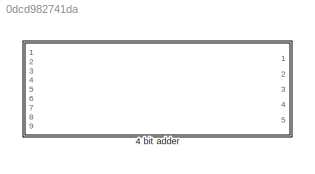
MODEL slx_0dcd982741da
KIND model
CONFIG AbsTol = auto
CONFIG EnableMultiTasking = off
CONFIG FixedStep = auto
CONFIG MaxStep = auto
CONFIG MinStep = auto
CONFIG RelTol = 1e-3
CONFIG SampleTimeConstraint = Unconstrained
CONFIG Solver = VariableStepAuto
CONFIG SolverName = VariableStepAuto
CONFIG StartTime = 0.0
CONFIG StopTime = 10.0
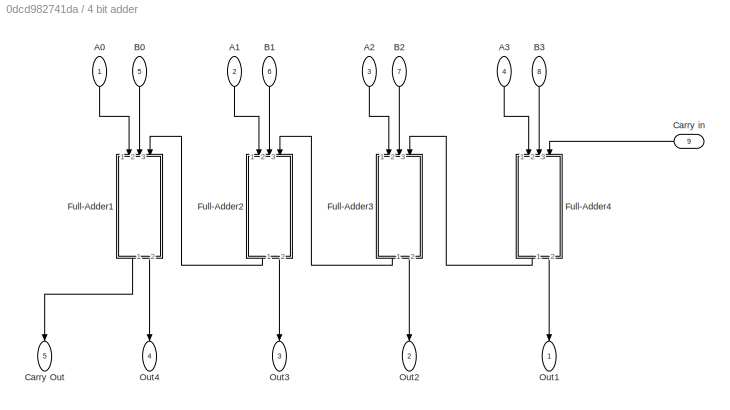
BLOCK [SubSystem] 4 bit adder
  Ports = [9, 5]
  RequestExecContextInheritance = off
  Variant = off
BLOCK [Inport] 4 bit adder/A0 
  IconDisplay = Port number
BLOCK [Inport] 4 bit adder/A1 
  IconDisplay = Port number
  Port = 2
BLOCK [Inport] 4 bit adder/A2
  IconDisplay = Port number
  Port = 3
BLOCK [Inport] 4 bit adder/A3
  IconDisplay = Port number
  Port = 4
BLOCK [Inport] 4 bit adder/B0
  IconDisplay = Port number
  Port = 5
BLOCK [Inport] 4 bit adder/B1
  IconDisplay = Port number
  Port = 6
BLOCK [Inport] 4 bit adder/B2
  IconDisplay = Port number
  Port = 7
BLOCK [Inport] 4 bit adder/B3
  IconDisplay = Port number
  Port = 8
BLOCK [Outport] 4 bit adder/Carry Out
  IconDisplay = Port number
  Port = 5
BLOCK [Inport] 4 bit adder/Carry in
  IconDisplay = Port number
  Port = 9
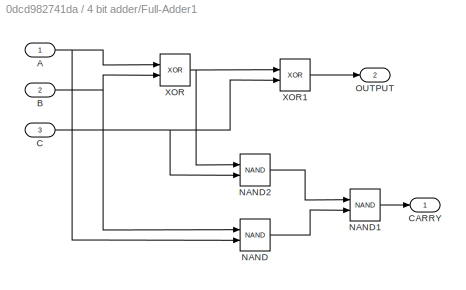
BLOCK [SubSystem] 4 bit adder/Full-Adder1
  Ports = [3, 2]
  RequestExecContextInheritance = off
  Variant = off
BLOCK [Inport] 4 bit adder/Full-Adder1/A
  IconDisplay = Port number
BLOCK [Inport] 4 bit adder/Full-Adder1/B
  IconDisplay = Port number
  Port = 2
BLOCK [Inport] 4 bit adder/Full-Adder1/C
  IconDisplay = Port number
  Port = 3
BLOCK [Outport] 4 bit adder/Full-Adder1/CARRY
  IconDisplay = Port number
BLOCK [Logic] 4 bit adder/Full-Adder1/NAND
  AllPortsSameDT = off
  IconShape = distinctive
  Operator = NAND
  OutDataTypeStr = boolean
  Ports = [2, 1]
BLOCK [Logic] 4 bit adder/Full-Adder1/NAND1
  AllPortsSameDT = off
  IconShape = distinctive
  Operator = NAND
  OutDataTypeStr = boolean
  Ports = [2, 1]
BLOCK [Logic] 4 bit adder/Full-Adder1/NAND2
  AllPortsSameDT = off
  IconShape = distinctive
  Operator = NAND
  OutDataTypeStr = boolean
  Ports = [2, 1]
BLOCK [Outport] 4 bit adder/Full-Adder1/OUTPUT
  IconDisplay = Port number
  Port = 2
BLOCK [Logic] 4 bit adder/Full-Adder1/XOR
  AllPortsSameDT = off
  IconShape = distinctive
  Operator = XOR
  OutDataTypeStr = boolean
  Ports = [2, 1]
BLOCK [Logic] 4 bit adder/Full-Adder1/XOR1
  AllPortsSameDT = off
  IconShape = distinctive
  Operator = XOR
  OutDataTypeStr = boolean
  Ports = [2, 1]
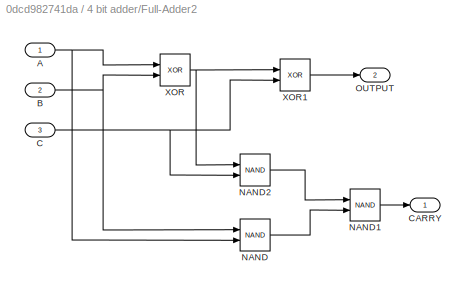
BLOCK [SubSystem] 4 bit adder/Full-Adder2
  Ports = [3, 2]
  RequestExecContextInheritance = off
  Variant = off
BLOCK [Inport] 4 bit adder/Full-Adder2/A
  IconDisplay = Port number
BLOCK [Inport] 4 bit adder/Full-Adder2/B
  IconDisplay = Port number
  Port = 2
BLOCK [Inport] 4 bit adder/Full-Adder2/C
  IconDisplay = Port number
  Port = 3
BLOCK [Outport] 4 bit adder/Full-Adder2/CARRY
  IconDisplay = Port number
BLOCK [Logic] 4 bit adder/Full-Adder2/NAND
  AllPortsSameDT = off
  IconShape = distinctive
  Operator = NAND
  OutDataTypeStr = boolean
  Ports = [2, 1]
BLOCK [Logic] 4 bit adder/Full-Adder2/NAND1
  AllPortsSameDT = off
  IconShape = distinctive
  Operator = NAND
  OutDataTypeStr = boolean
  Ports = [2, 1]
BLOCK [Logic] 4 bit adder/Full-Adder2/NAND2
  AllPortsSameDT = off
  IconShape = distinctive
  Operator = NAND
  OutDataTypeStr = boolean
  Ports = [2, 1]
BLOCK [Outport] 4 bit adder/Full-Adder2/OUTPUT
  IconDisplay = Port number
  Port = 2
BLOCK [Logic] 4 bit adder/Full-Adder2/XOR
  AllPortsSameDT = off
  IconShape = distinctive
  Operator = XOR
  OutDataTypeStr = boolean
  Ports = [2, 1]
BLOCK [Logic] 4 bit adder/Full-Adder2/XOR1
  AllPortsSameDT = off
  IconShape = distinctive
  Operator = XOR
  OutDataTypeStr = boolean
  Ports = [2, 1]
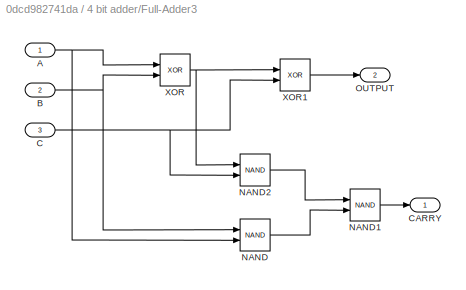
BLOCK [SubSystem] 4 bit adder/Full-Adder3
  Ports = [3, 2]
  RequestExecContextInheritance = off
  Variant = off
BLOCK [Inport] 4 bit adder/Full-Adder3/A
  IconDisplay = Port number
BLOCK [Inport] 4 bit adder/Full-Adder3/B
  IconDisplay = Port number
  Port = 2
BLOCK [Inport] 4 bit adder/Full-Adder3/C
  IconDisplay = Port number
  Port = 3
BLOCK [Outport] 4 bit adder/Full-Adder3/CARRY
  IconDisplay = Port number
BLOCK [Logic] 4 bit adder/Full-Adder3/NAND
  AllPortsSameDT = off
  IconShape = distinctive
  Operator = NAND
  OutDataTypeStr = boolean
  Ports = [2, 1]
BLOCK [Logic] 4 bit adder/Full-Adder3/NAND1
  AllPortsSameDT = off
  IconShape = distinctive
  Operator = NAND
  OutDataTypeStr = boolean
  Ports = [2, 1]
BLOCK [Logic] 4 bit adder/Full-Adder3/NAND2
  AllPortsSameDT = off
  IconShape = distinctive
  Operator = NAND
  OutDataTypeStr = boolean
  Ports = [2, 1]
BLOCK [Outport] 4 bit adder/Full-Adder3/OUTPUT
  IconDisplay = Port number
  Port = 2
BLOCK [Logic] 4 bit adder/Full-Adder3/XOR
  AllPortsSameDT = off
  IconShape = distinctive
  Operator = XOR
  OutDataTypeStr = boolean
  Ports = [2, 1]
BLOCK [Logic] 4 bit adder/Full-Adder3/XOR1
  AllPortsSameDT = off
  IconShape = distinctive
  Operator = XOR
  OutDataTypeStr = boolean
  Ports = [2, 1]
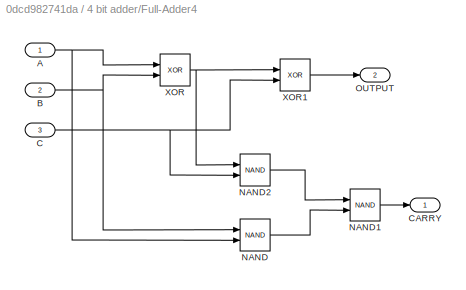
BLOCK [SubSystem] 4 bit adder/Full-Adder4
  Ports = [3, 2]
  RequestExecContextInheritance = off
  Variant = off
BLOCK [Inport] 4 bit adder/Full-Adder4/A
  IconDisplay = Port number
BLOCK [Inport] 4 bit adder/Full-Adder4/B
  IconDisplay = Port number
  Port = 2
BLOCK [Inport] 4 bit adder/Full-Adder4/C
  IconDisplay = Port number
  Port = 3
BLOCK [Outport] 4 bit adder/Full-Adder4/CARRY
  IconDisplay = Port number
BLOCK [Logic] 4 bit adder/Full-Adder4/NAND
  AllPortsSameDT = off
  IconShape = distinctive
  Operator = NAND
  OutDataTypeStr = boolean
  Ports = [2, 1]
BLOCK [Logic] 4 bit adder/Full-Adder4/NAND1
  AllPortsSameDT = off
  IconShape = distinctive
  Operator = NAND
  OutDataTypeStr = boolean
  Ports = [2, 1]
BLOCK [Logic] 4 bit adder/Full-Adder4/NAND2
  AllPortsSameDT = off
  IconShape = distinctive
  Operator = NAND
  OutDataTypeStr = boolean
  Ports = [2, 1]
BLOCK [Outport] 4 bit adder/Full-Adder4/OUTPUT
  IconDisplay = Port number
  Port = 2
BLOCK [Logic] 4 bit adder/Full-Adder4/XOR
  AllPortsSameDT = off
  IconShape = distinctive
  Operator = XOR
  OutDataTypeStr = boolean
  Ports = [2, 1]
BLOCK [Logic] 4 bit adder/Full-Adder4/XOR1
  AllPortsSameDT = off
  IconShape = distinctive
  Operator = XOR
  OutDataTypeStr = boolean
  Ports = [2, 1]
BLOCK [Outport] 4 bit adder/Out1
  IconDisplay = Port number
BLOCK [Outport] 4 bit adder/Out2
  IconDisplay = Port number
  Port = 2
BLOCK [Outport] 4 bit adder/Out3
  IconDisplay = Port number
  Port = 3
BLOCK [Outport] 4 bit adder/Out4
  IconDisplay = Port number
  Port = 4
LINE 4 bit adder/A0 :1 -> 4 bit adder/Full-Adder1:1
LINE 4 bit adder/A1 :1 -> 4 bit adder/Full-Adder2:1
LINE 4 bit adder/A2:1 -> 4 bit adder/Full-Adder3:1
LINE 4 bit adder/A3:1 -> 4 bit adder/Full-Adder4:1
LINE 4 bit adder/B0:1 -> 4 bit adder/Full-Adder1:2
LINE 4 bit adder/B1:1 -> 4 bit adder/Full-Adder2:2
LINE 4 bit adder/B2:1 -> 4 bit adder/Full-Adder3:2
LINE 4 bit adder/B3:1 -> 4 bit adder/Full-Adder4:2
LINE 4 bit adder/Carry in:1 -> 4 bit adder/Full-Adder4:3
NET 4 bit adder/Full-Adder1/A:1 -> 4 bit adder/Full-Adder1/NAND:2, 4 bit adder/Full-Adder1/XOR:1
NET 4 bit adder/Full-Adder1/B:1 -> 4 bit adder/Full-Adder1/NAND:1, 4 bit adder/Full-Adder1/XOR:2
NET 4 bit adder/Full-Adder1/C:1 -> 4 bit adder/Full-Adder1/NAND2:2, 4 bit adder/Full-Adder1/XOR1:2
LINE 4 bit adder/Full-Adder1/NAND1:1 -> 4 bit adder/Full-Adder1/CARRY:1
LINE 4 bit adder/Full-Adder1/NAND2:1 -> 4 bit adder/Full-Adder1/NAND1:1
LINE 4 bit adder/Full-Adder1/NAND:1 -> 4 bit adder/Full-Adder1/NAND1:2
LINE 4 bit adder/Full-Adder1/XOR1:1 -> 4 bit adder/Full-Adder1/OUTPUT:1
NET 4 bit adder/Full-Adder1/XOR:1 -> 4 bit adder/Full-Adder1/NAND2:1, 4 bit adder/Full-Adder1/XOR1:1
LINE 4 bit adder/Full-Adder1:1 -> 4 bit adder/Carry Out:1
LINE 4 bit adder/Full-Adder1:2 -> 4 bit adder/Out4:1
NET 4 bit adder/Full-Adder2/A:1 -> 4 bit adder/Full-Adder2/NAND:2, 4 bit adder/Full-Adder2/XOR:1
NET 4 bit adder/Full-Adder2/B:1 -> 4 bit adder/Full-Adder2/NAND:1, 4 bit adder/Full-Adder2/XOR:2
NET 4 bit adder/Full-Adder2/C:1 -> 4 bit adder/Full-Adder2/NAND2:2, 4 bit adder/Full-Adder2/XOR1:2
LINE 4 bit adder/Full-Adder2/NAND1:1 -> 4 bit adder/Full-Adder2/CARRY:1
LINE 4 bit adder/Full-Adder2/NAND2:1 -> 4 bit adder/Full-Adder2/NAND1:1
LINE 4 bit adder/Full-Adder2/NAND:1 -> 4 bit adder/Full-Adder2/NAND1:2
LINE 4 bit adder/Full-Adder2/XOR1:1 -> 4 bit adder/Full-Adder2/OUTPUT:1
NET 4 bit adder/Full-Adder2/XOR:1 -> 4 bit adder/Full-Adder2/NAND2:1, 4 bit adder/Full-Adder2/XOR1:1
LINE 4 bit adder/Full-Adder2:1 -> 4 bit adder/Full-Adder1:3
LINE 4 bit adder/Full-Adder2:2 -> 4 bit adder/Out3:1
NET 4 bit adder/Full-Adder3/A:1 -> 4 bit adder/Full-Adder3/NAND:2, 4 bit adder/Full-Adder3/XOR:1
NET 4 bit adder/Full-Adder3/B:1 -> 4 bit adder/Full-Adder3/NAND:1, 4 bit adder/Full-Adder3/XOR:2
NET 4 bit adder/Full-Adder3/C:1 -> 4 bit adder/Full-Adder3/NAND2:2, 4 bit adder/Full-Adder3/XOR1:2
LINE 4 bit adder/Full-Adder3/NAND1:1 -> 4 bit adder/Full-Adder3/CARRY:1
LINE 4 bit adder/Full-Adder3/NAND2:1 -> 4 bit adder/Full-Adder3/NAND1:1
LINE 4 bit adder/Full-Adder3/NAND:1 -> 4 bit adder/Full-Adder3/NAND1:2
LINE 4 bit adder/Full-Adder3/XOR1:1 -> 4 bit adder/Full-Adder3/OUTPUT:1
NET 4 bit adder/Full-Adder3/XOR:1 -> 4 bit adder/Full-Adder3/NAND2:1, 4 bit adder/Full-Adder3/XOR1:1
LINE 4 bit adder/Full-Adder3:1 -> 4 bit adder/Full-Adder2:3
LINE 4 bit adder/Full-Adder3:2 -> 4 bit adder/Out2:1
NET 4 bit adder/Full-Adder4/A:1 -> 4 bit adder/Full-Adder4/NAND:2, 4 bit adder/Full-Adder4/XOR:1
NET 4 bit adder/Full-Adder4/B:1 -> 4 bit adder/Full-Adder4/NAND:1, 4 bit adder/Full-Adder4/XOR:2
NET 4 bit adder/Full-Adder4/C:1 -> 4 bit adder/Full-Adder4/NAND2:2, 4 bit adder/Full-Adder4/XOR1:2
LINE 4 bit adder/Full-Adder4/NAND1:1 -> 4 bit adder/Full-Adder4/CARRY:1
LINE 4 bit adder/Full-Adder4/NAND2:1 -> 4 bit adder/Full-Adder4/NAND1:1
LINE 4 bit adder/Full-Adder4/NAND:1 -> 4 bit adder/Full-Adder4/NAND1:2
LINE 4 bit adder/Full-Adder4/XOR1:1 -> 4 bit adder/Full-Adder4/OUTPUT:1
NET 4 bit adder/Full-Adder4/XOR:1 -> 4 bit adder/Full-Adder4/NAND2:1, 4 bit adder/Full-Adder4/XOR1:1
LINE 4 bit adder/Full-Adder4:1 -> 4 bit adder/Full-Adder3:3
LINE 4 bit adder/Full-Adder4:2 -> 4 bit adder/Out1:1
note: NET lines group one-source signal fan-out (src -> all destinations, sorted); 1:1 wires keep LINE
